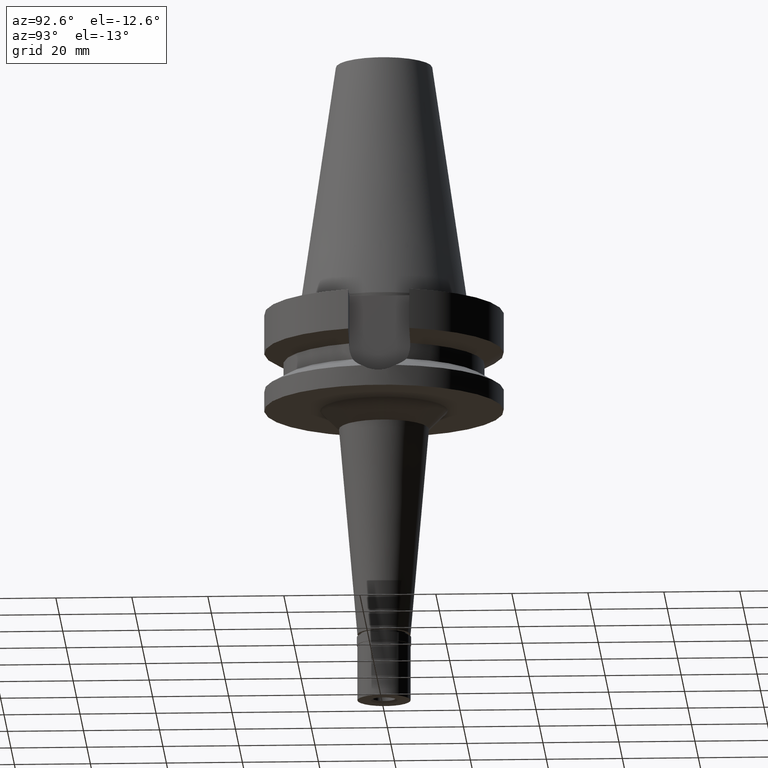
[diagram: clean part render]
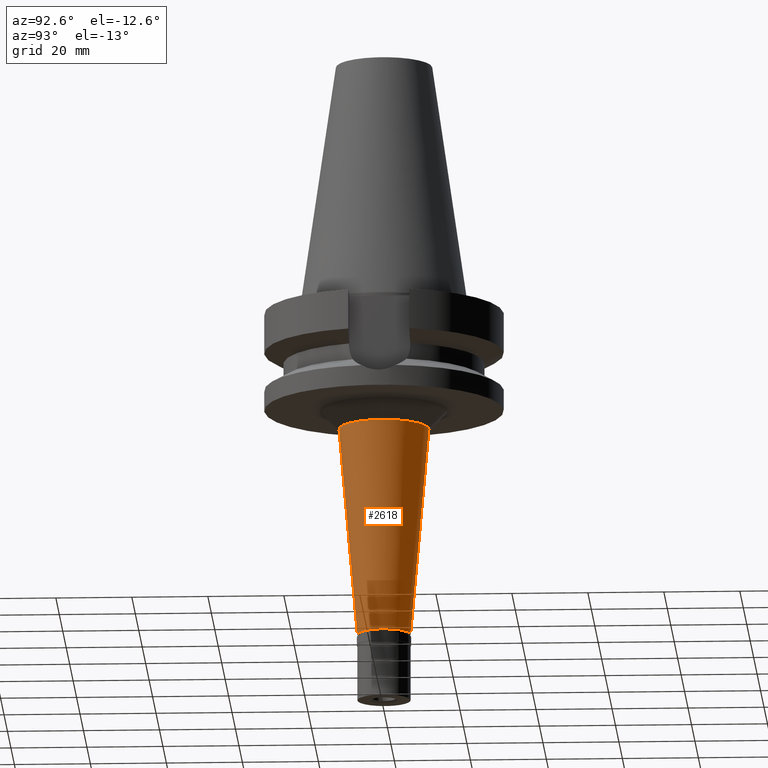
[diagram: same view with one face highlighted and labeled with its STEP entity id]
A machine part, auxiliary view. The second image highlights one B-rep face of the part: STEP entity #2618.
In plain terms, the highlighted conical surface has half-angle 5 deg.
Its self-contained STEP definition (entity closure, byte-faithful):
#45 = CARTESIAN_POINT ( 'NONE',  ( 0.0000000000000000000, 0.0000000000000000000, -32.00000000000000000 ) ) ;
#72 = DIRECTION ( 'NONE',  ( 0.0000000000000000000, 0.0000000000000000000, 1.000000000000000000 ) ) ;
#93 = CARTESIAN_POINT ( 'NONE',  ( 0.0000000000000000000, 11.83812309298000010, -32.00000000000000000 ) ) ;
#318 = LINE ( 'NONE', #93, #893 ) ;
#330 = ORIENTED_EDGE ( 'NONE', *, *, #2702, .F. ) ;
#400 = VERTEX_POINT ( 'NONE', #2751 ) ;
#404 = EDGE_LOOP ( 'NONE', ( #330, #2236, #501, #1770 ) ) ;
#426 = AXIS2_PLACEMENT_3D ( 'NONE', #45, #72, #1674 ) ;
#501 = ORIENTED_EDGE ( 'NONE', *, *, #1702, .T. ) ;
#536 = CARTESIAN_POINT ( 'NONE',  ( 0.0000000000000000000, 0.0000000000000000000, -87.29999999999999716 ) ) ;
#608 = CARTESIAN_POINT ( 'NONE',  ( 0.0000000000000000000, -11.83812309298000010, -32.00000000000000000 ) ) ;
#769 = DIRECTION ( 'NONE',  ( 0.0000000000000000000, 0.0000000000000000000, 1.000000000000000000 ) ) ;
#827 = LINE ( 'NONE', #608, #2393 ) ;
#893 = VECTOR ( 'NONE', #1501, 1000.000000000000114 ) ;
#1001 = AXIS2_PLACEMENT_3D ( 'NONE', #1780, #2528, #2264 ) ;
#1035 = CIRCLE ( 'NONE', #426, 11.83812309298000010 ) ;
#1096 = VERTEX_POINT ( 'NONE', #2673 ) ;
#1098 = EDGE_CURVE ( 'NONE', #400, #2477, #827, .T. ) ;
#1143 = CONICAL_SURFACE ( 'NONE', #1001, 9.419061546492001114, 0.08726646259969973729 ) ;
#1244 = CIRCLE ( 'NONE', #1912, 7.000000000000000000 ) ;
#1369 = FACE_OUTER_BOUND ( 'NONE', #404, .T. ) ;
#1448 = VERTEX_POINT ( 'NONE', #2451 ) ;
#1501 = DIRECTION ( 'NONE',  ( 0.0000000000000000000, -0.08715574274763414342, -0.9961946980917475436 ) ) ;
#1674 = DIRECTION ( 'NONE',  ( 0.0000000000000000000, -1.000000000000000000, 0.0000000000000000000 ) ) ;
#1702 = EDGE_CURVE ( 'NONE', #2477, #1096, #1244, .T. ) ;
#1761 = CARTESIAN_POINT ( 'NONE',  ( 0.0000000000000000000, -7.000000000000000000, -87.29999999999999716 ) ) ;
#1770 = ORIENTED_EDGE ( 'NONE', *, *, #2944, .F. ) ;
#1780 = CARTESIAN_POINT ( 'NONE',  ( 0.0000000000000000000, 0.0000000000000000000, -59.64999999999999858 ) ) ;
#1912 = AXIS2_PLACEMENT_3D ( 'NONE', #536, #769, #2838 ) ;
#2236 = ORIENTED_EDGE ( 'NONE', *, *, #1098, .T. ) ;
#2264 = DIRECTION ( 'NONE',  ( 0.0000000000000000000, 1.000000000000000000, 0.0000000000000000000 ) ) ;
#2393 = VECTOR ( 'NONE', #2408, 1000.000000000000114 ) ;
#2408 = DIRECTION ( 'NONE',  ( 0.0000000000000000000, 0.08715574274763414342, -0.9961946980917475436 ) ) ;
#2451 = CARTESIAN_POINT ( 'NONE',  ( 0.0000000000000000000, 11.83812309298000010, -32.00000000000000000 ) ) ;
#2477 = VERTEX_POINT ( 'NONE', #1761 ) ;
#2528 = DIRECTION ( 'NONE',  ( 0.0000000000000000000, 0.0000000000000000000, 1.000000000000000000 ) ) ;
#2618 = ADVANCED_FACE ( 'NONE', ( #1369 ), #1143, .T. ) ;
#2673 = CARTESIAN_POINT ( 'NONE',  ( 0.0000000000000000000, 7.000000000000000000, -87.29999999999999716 ) ) ;
#2702 = EDGE_CURVE ( 'NONE', #400, #1448, #1035, .T. ) ;
#2751 = CARTESIAN_POINT ( 'NONE',  ( 0.0000000000000000000, -11.83812309298000010, -32.00000000000000000 ) ) ;
#2838 = DIRECTION ( 'NONE',  ( 0.0000000000000000000, -1.000000000000000000, 0.0000000000000000000 ) ) ;
#2944 = EDGE_CURVE ( 'NONE', #1448, #1096, #318, .T. ) ;